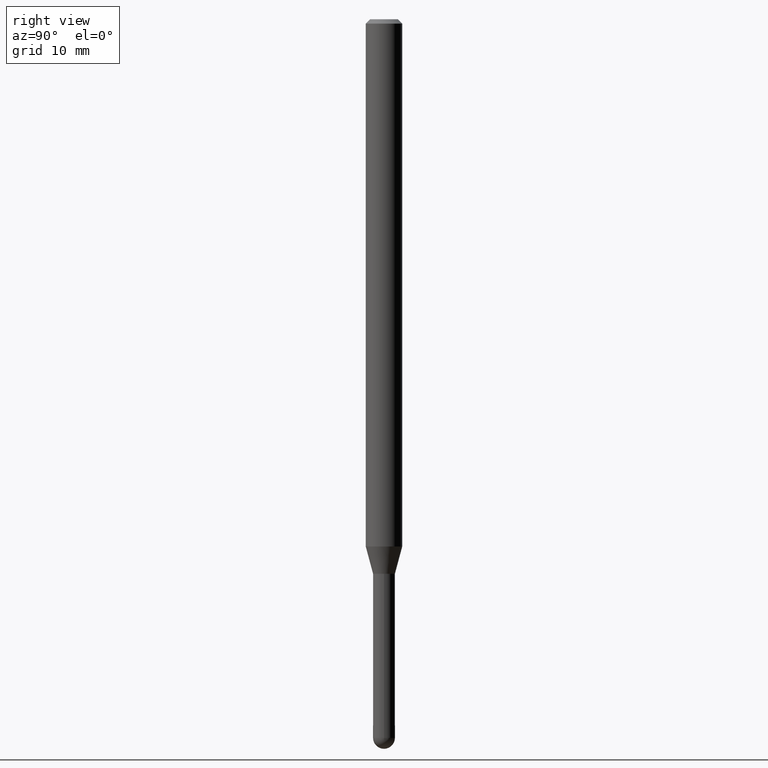
[diagram: clean part render]
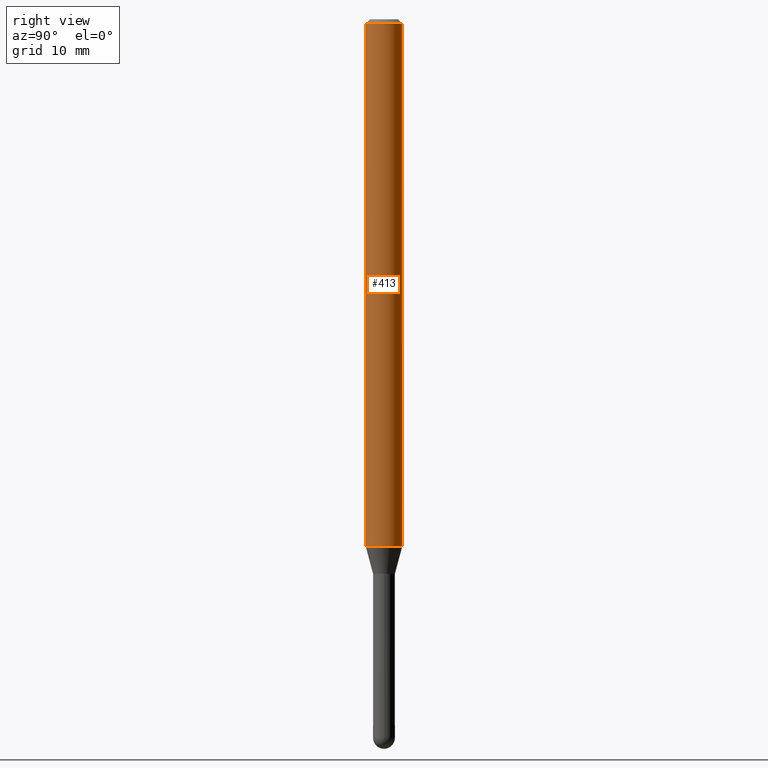
[diagram: same view with one face highlighted and labeled with its STEP entity id]
A machine part, right view. The second image highlights one B-rep face of the part: STEP entity #413.
In plain terms, the highlighted cylindrical surface (edge-blend (fillet) strip) has radius 1.5875 mm, axis along (-0, 0, 1).
Its self-contained STEP definition (entity closure, byte-faithful):
#1 = CYLINDRICAL_SURFACE ( 'NONE', #429, 0.06250000000000000000 ) ;
#35 = AXIS2_PLACEMENT_3D ( 'NONE', #352, #118, #193 ) ;
#47 = VECTOR ( 'NONE', #399, 39.37007874015748143 ) ;
#50 = DIRECTION ( 'NONE',  ( -6.982962677686265922E-15, -1.000000000000000000, 3.491601197584523250E-15 ) ) ;
#101 = CIRCLE ( 'NONE', #35, 0.06250000000000000000 ) ;
#102 = VERTEX_POINT ( 'NONE', #512 ) ;
#104 = VERTEX_POINT ( 'NONE', #464 ) ;
#116 = LINE ( 'NONE', #491, #238 ) ;
#118 = DIRECTION ( 'NONE',  ( -2.445385109273373286E-29, 3.491601197584523250E-15, 1.000000000000000000 ) ) ;
#119 = DIRECTION ( 'NONE',  ( -2.445385109273373005E-29, 3.491601197584523250E-15, 1.000000000000000000 ) ) ;
#141 = ORIENTED_EDGE ( 'NONE', *, *, #213, .T. ) ;
#153 = DIRECTION ( 'NONE',  ( -6.982962677686265922E-15, -1.000000000000000000, 3.483106191921935554E-15 ) ) ;
#193 = DIRECTION ( 'NONE',  ( -6.982962677686265922E-15, -1.000000000000000000, 4.370956789862821150E-15 ) ) ;
#211 = CARTESIAN_POINT ( 'NONE',  ( 4.440892098500625669E-16, 0.06250000000000000000, -2.182250748490327031E-16 ) ) ;
#213 = EDGE_CURVE ( 'NONE', #218, #102, #101, .T. ) ;
#218 = VERTEX_POINT ( 'NONE', #441 ) ;
#223 = EDGE_CURVE ( 'NONE', #307, #104, #492, .T. ) ;
#238 = VECTOR ( 'NONE', #119, 39.37007874015748143 ) ;
#241 = DIRECTION ( 'NONE',  ( -2.445385109273373286E-29, 3.491601197584523250E-15, 1.000000000000000000 ) ) ;
#243 = CARTESIAN_POINT ( 'NONE',  ( -4.364351673553912750E-16, -0.06250000000000005551, -0.01499999999999979128 ) ) ;
#269 = AXIS2_PLACEMENT_3D ( 'NONE', #358, #506, #153 ) ;
#300 = LINE ( 'NONE', #211, #47 ) ;
#307 = VERTEX_POINT ( 'NONE', #243 ) ;
#313 = ORIENTED_EDGE ( 'NONE', *, *, #223, .F. ) ;
#352 = CARTESIAN_POINT ( 'NONE',  ( 4.418074170822402201E-29, -6.308271448681760560E-15, -1.806698729810781057 ) ) ;
#358 = CARTESIAN_POINT ( 'NONE',  ( 3.668077663910062276E-31, -5.237401796376787981E-17, -0.01500000000000000812 ) ) ;
#370 = CARTESIAN_POINT ( 'NONE',  ( 0.000000000000000000, 0.000000000000000000, 0.000000000000000000 ) ) ;
#375 = FACE_OUTER_BOUND ( 'NONE', #505, .T. ) ;
#393 = EDGE_CURVE ( 'NONE', #102, #104, #300, .T. ) ;
#399 = DIRECTION ( 'NONE',  ( -2.445385109273373005E-29, 3.491601197584523250E-15, 1.000000000000000000 ) ) ;
#413 = ADVANCED_FACE ( 'NONE', ( #375 ), #1, .T. ) ;
#430 = ORIENTED_EDGE ( 'NONE', *, *, #485, .F. ) ;
#429 = AXIS2_PLACEMENT_3D ( 'NONE', #370, #241, #50 ) ;
#441 = CARTESIAN_POINT ( 'NONE',  ( -4.364351673553477397E-16, -0.06250000000000634215, -1.806698729810780835 ) ) ;
#464 = CARTESIAN_POINT ( 'NONE',  ( 4.440892098501069896E-16, 0.06249999999999995143, -0.01500000000000022669 ) ) ;
#485 = EDGE_CURVE ( 'NONE', #218, #307, #116, .T. ) ;
#491 = CARTESIAN_POINT ( 'NONE',  ( -4.364351673553916201E-16, -0.06250000000000000000, 2.182250748490327031E-16 ) ) ;
#492 = CIRCLE ( 'NONE', #269, 0.06250000000000000000 ) ;
#501 = ORIENTED_EDGE ( 'NONE', *, *, #393, .T. ) ;
#505 = EDGE_LOOP ( 'NONE', ( #141, #501, #313, #430 ) ) ;
#506 = DIRECTION ( 'NONE',  ( -2.445385109273373286E-29, 3.491601197584523250E-15, 1.000000000000000000 ) ) ;
#512 = CARTESIAN_POINT ( 'NONE',  ( 4.440892098501064966E-16, 0.06249999999999365785, -1.806698729810781501 ) ) ;